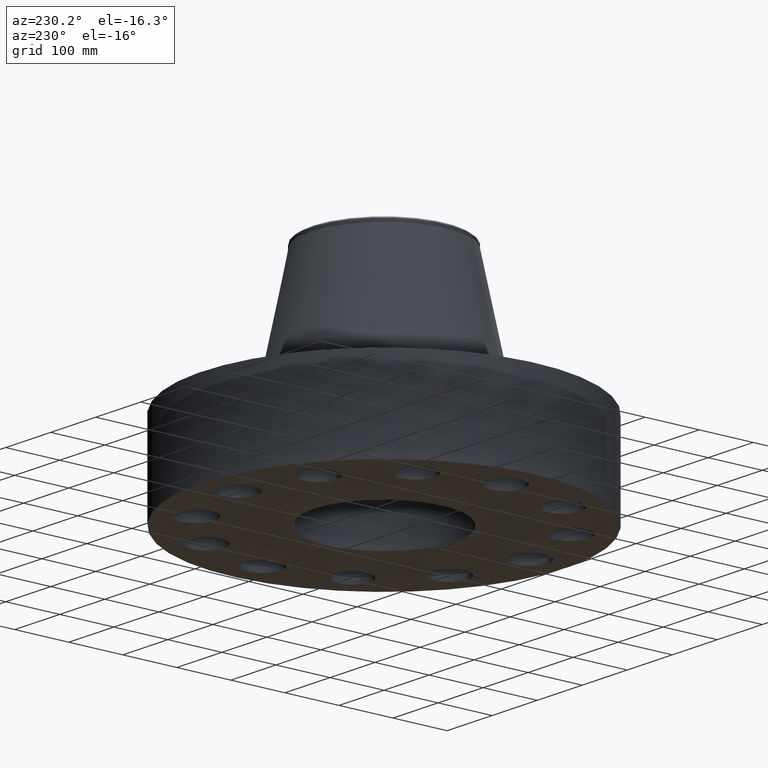
[diagram: clean part render]
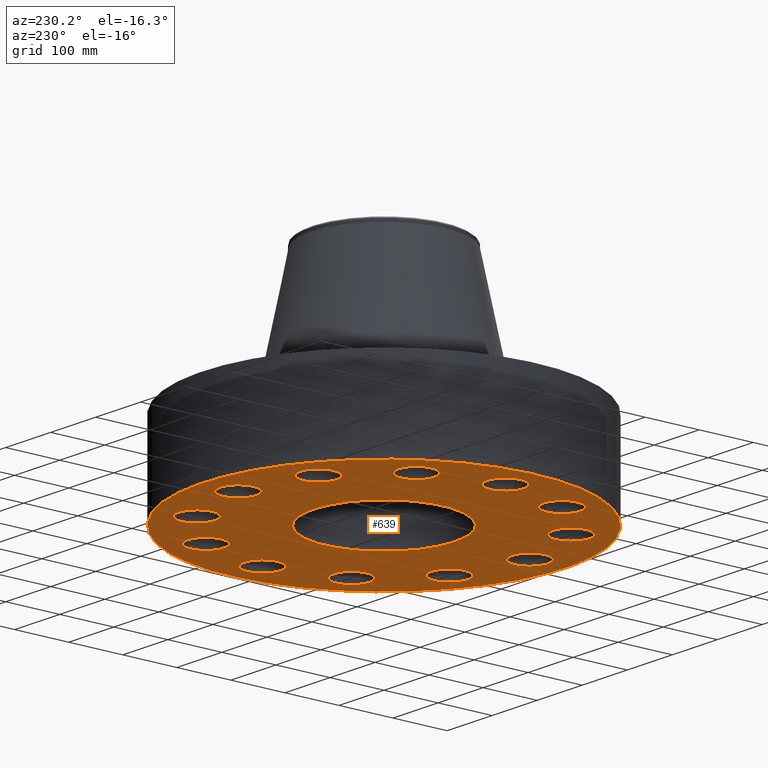
[diagram: same view with one face highlighted and labeled with its STEP entity id]
A machine part, auxiliary view. The second image highlights one B-rep face of the part: STEP entity #639.
In plain terms, the highlighted planar face has unit normal (0, 0, -1).
Its self-contained STEP definition (entity closure, byte-faithful):
#51=AXIS2_PLACEMENT_3D('Circle Axis2P3D',#49,#50,$) ;
#77=AXIS2_PLACEMENT_3D('Circle Axis2P3D',#75,#76,$) ;
#99=AXIS2_PLACEMENT_3D('Circle Axis2P3D',#97,#98,$) ;
#134=AXIS2_PLACEMENT_3D('Circle Axis2P3D',#132,#133,$) ;
#395=AXIS2_PLACEMENT_3D('Circle Axis2P3D',#393,#394,$) ;
#414=AXIS2_PLACEMENT_3D('Circle Axis2P3D',#412,#413,$) ;
#427=AXIS2_PLACEMENT_3D('Plane Axis2P3D',#424,#425,#426) ;
#443=AXIS2_PLACEMENT_3D('Circle Axis2P3D',#441,#442,$) ;
#452=AXIS2_PLACEMENT_3D('Circle Axis2P3D',#450,#451,$) ;
#461=AXIS2_PLACEMENT_3D('Circle Axis2P3D',#459,#460,$) ;
#470=AXIS2_PLACEMENT_3D('Circle Axis2P3D',#468,#469,$) ;
#479=AXIS2_PLACEMENT_3D('Circle Axis2P3D',#477,#478,$) ;
#488=AXIS2_PLACEMENT_3D('Circle Axis2P3D',#486,#487,$) ;
#497=AXIS2_PLACEMENT_3D('Circle Axis2P3D',#495,#496,$) ;
#506=AXIS2_PLACEMENT_3D('Circle Axis2P3D',#504,#505,$) ;
#515=AXIS2_PLACEMENT_3D('Circle Axis2P3D',#513,#514,$) ;
#524=AXIS2_PLACEMENT_3D('Circle Axis2P3D',#522,#523,$) ;
#533=AXIS2_PLACEMENT_3D('Circle Axis2P3D',#531,#532,$) ;
#542=AXIS2_PLACEMENT_3D('Circle Axis2P3D',#540,#541,$) ;
#551=AXIS2_PLACEMENT_3D('Circle Axis2P3D',#549,#550,$) ;
#560=AXIS2_PLACEMENT_3D('Circle Axis2P3D',#558,#559,$) ;
#569=AXIS2_PLACEMENT_3D('Circle Axis2P3D',#567,#568,$) ;
#578=AXIS2_PLACEMENT_3D('Circle Axis2P3D',#576,#577,$) ;
#587=AXIS2_PLACEMENT_3D('Circle Axis2P3D',#585,#586,$) ;
#596=AXIS2_PLACEMENT_3D('Circle Axis2P3D',#594,#595,$) ;
#605=AXIS2_PLACEMENT_3D('Circle Axis2P3D',#603,#604,$) ;
#614=AXIS2_PLACEMENT_3D('Circle Axis2P3D',#612,#613,$) ;
#623=AXIS2_PLACEMENT_3D('Circle Axis2P3D',#621,#622,$) ;
#632=AXIS2_PLACEMENT_3D('Circle Axis2P3D',#630,#631,$) ;
#44=CARTESIAN_POINT('Vertex',(9.47097893115,0.630444583267,0.)) ;
#49=CARTESIAN_POINT('Axis2P3D Location',(10.625,0.,0.)) ;
#53=CARTESIAN_POINT('Vertex',(11.7790210689,-0.630444583267,0.)) ;
#75=CARTESIAN_POINT('Axis2P3D Location',(10.625,0.,0.)) ;
#97=CARTESIAN_POINT('Axis2P3D Location',(0.,0.,1.1189649382E-015)) ;
#101=CARTESIAN_POINT('Vertex',(-6.35238838653,-11.6279689451,1.1189649382E-015)) ;
#103=CARTESIAN_POINT('Vertex',(6.35238838653,11.6279689451,1.1189649382E-015)) ;
#132=CARTESIAN_POINT('Axis2P3D Location',(0.,0.,1.1189649382E-015)) ;
#390=CARTESIAN_POINT('Vertex',(-2.45705588536,-4.49761062971,-1.56655091349E-014)) ;
#393=CARTESIAN_POINT('Axis2P3D Location',(0.,0.,-1.79034390113E-014)) ;
#397=CARTESIAN_POINT('Vertex',(2.45705588536,4.49761062971,-1.56655091349E-014)) ;
#412=CARTESIAN_POINT('Axis2P3D Location',(0.,0.,-1.79034390113E-014)) ;
#424=CARTESIAN_POINT('Axis2P3D Location',(0.,5.12500000002,0.)) ;
#441=CARTESIAN_POINT('Axis2P3D Location',(9.20151991525,-5.31250000002,0.)) ;
#445=CARTESIAN_POINT('Vertex',(8.51733064472,-4.18950844079,0.)) ;
#447=CARTESIAN_POINT('Vertex',(9.88570918577,-6.43549155925,0.)) ;
#450=CARTESIAN_POINT('Axis2P3D Location',(9.20151991525,-5.31250000002,0.)) ;
#459=CARTESIAN_POINT('Axis2P3D Location',(5.31250000002,-9.20151991525,0.)) ;
#463=CARTESIAN_POINT('Vertex',(5.28147049036,-7.88688606145,0.)) ;
#465=CARTESIAN_POINT('Vertex',(5.34352950968,-10.516153769,0.)) ;
#468=CARTESIAN_POINT('Axis2P3D Location',(5.31250000002,-9.20151991525,0.)) ;
#477=CARTESIAN_POINT('Axis2P3D Location',(-1.53857679003E-015,-10.625,0.)) ;
#481=CARTESIAN_POINT('Vertex',(0.630444583267,-9.47097893115,0.)) ;
#483=CARTESIAN_POINT('Vertex',(-0.630444583267,-11.7790210689,0.)) ;
#486=CARTESIAN_POINT('Axis2P3D Location',(-9.79094320929E-016,-10.625,0.)) ;
#495=CARTESIAN_POINT('Axis2P3D Location',(-5.31250000002,-9.20151991525,0.)) ;
#499=CARTESIAN_POINT('Vertex',(-4.18950844079,-8.51733064472,0.)) ;
#501=CARTESIAN_POINT('Vertex',(-6.43549155925,-9.88570918577,-6.71378962923E-015)) ;
#504=CARTESIAN_POINT('Axis2P3D Location',(-5.31250000002,-9.20151991525,0.)) ;
#513=CARTESIAN_POINT('Axis2P3D Location',(-9.20151991525,-5.31250000002,0.)) ;
#517=CARTESIAN_POINT('Vertex',(-7.88688606145,-5.28147049036,0.)) ;
#519=CARTESIAN_POINT('Vertex',(-10.516153769,-5.34352950968,0.)) ;
#522=CARTESIAN_POINT('Axis2P3D Location',(-9.20151991525,-5.31250000002,0.)) ;
#531=CARTESIAN_POINT('Axis2P3D Location',(-10.625,0.,0.)) ;
#535=CARTESIAN_POINT('Vertex',(-9.47097893115,-0.630444583267,0.)) ;
#537=CARTESIAN_POINT('Vertex',(-11.7790210689,0.630444583267,0.)) ;
#540=CARTESIAN_POINT('Axis2P3D Location',(-10.625,-1.1189649382E-015,0.)) ;
#549=CARTESIAN_POINT('Axis2P3D Location',(-9.20151991525,5.31250000002,0.)) ;
#553=CARTESIAN_POINT('Vertex',(-8.51733064472,4.18950844079,0.)) ;
#555=CARTESIAN_POINT('Vertex',(-9.88570918577,6.43549155925,0.)) ;
#558=CARTESIAN_POINT('Axis2P3D Location',(-9.20151991525,5.31250000002,0.)) ;
#567=CARTESIAN_POINT('Axis2P3D Location',(-5.31250000002,9.20151991525,0.)) ;
#571=CARTESIAN_POINT('Vertex',(-5.28147049036,7.88688606145,0.)) ;
#573=CARTESIAN_POINT('Vertex',(-5.34352950968,10.516153769,0.)) ;
#576=CARTESIAN_POINT('Axis2P3D Location',(-5.31250000002,9.20151991525,0.)) ;
#585=CARTESIAN_POINT('Axis2P3D Location',(-1.95818864186E-015,10.625,0.)) ;
#589=CARTESIAN_POINT('Vertex',(-0.630444583267,9.47097893115,0.)) ;
#591=CARTESIAN_POINT('Vertex',(0.630444583267,11.7790210689,0.)) ;
#594=CARTESIAN_POINT('Axis2P3D Location',(-2.09805925913E-015,10.625,0.)) ;
#603=CARTESIAN_POINT('Axis2P3D Location',(5.31250000002,9.20151991525,0.)) ;
#607=CARTESIAN_POINT('Vertex',(4.18950844079,8.51733064472,0.)) ;
#609=CARTESIAN_POINT('Vertex',(6.43549155925,9.88570918577,0.)) ;
#612=CARTESIAN_POINT('Axis2P3D Location',(5.31250000002,9.20151991525,0.)) ;
#621=CARTESIAN_POINT('Axis2P3D Location',(9.20151991525,5.31250000002,0.)) ;
#625=CARTESIAN_POINT('Vertex',(7.88688606145,5.28147049036,0.)) ;
#627=CARTESIAN_POINT('Vertex',(10.516153769,5.34352950968,0.)) ;
#630=CARTESIAN_POINT('Axis2P3D Location',(9.20151991525,5.31250000002,0.)) ;
#50=DIRECTION('Axis2P3D Direction',(0.,-0.,-0.0393700787402)) ;
#76=DIRECTION('Axis2P3D Direction',(0.,-0.,-0.0393700787402)) ;
#98=DIRECTION('Axis2P3D Direction',(0.,0.,-0.0393700787402)) ;
#133=DIRECTION('Axis2P3D Direction',(0.,0.,-0.0393700787402)) ;
#394=DIRECTION('Axis2P3D Direction',(0.,0.,-0.0393700787402)) ;
#413=DIRECTION('Axis2P3D Direction',(0.,0.,-0.0393700787402)) ;
#425=DIRECTION('Axis2P3D Direction',(0.,0.,-0.0393700787402)) ;
#426=DIRECTION('Axis2P3D XDirection',(0.0393700787402,0.,0.)) ;
#442=DIRECTION('Axis2P3D Direction',(0.,0.,-0.0393700787402)) ;
#451=DIRECTION('Axis2P3D Direction',(0.,0.,-0.0393700787402)) ;
#460=DIRECTION('Axis2P3D Direction',(0.,0.,-0.0393700787402)) ;
#469=DIRECTION('Axis2P3D Direction',(0.,0.,-0.0393700787402)) ;
#478=DIRECTION('Axis2P3D Direction',(0.,0.,-0.0393700787402)) ;
#487=DIRECTION('Axis2P3D Direction',(0.,0.,-0.0393700787402)) ;
#496=DIRECTION('Axis2P3D Direction',(0.,0.,-0.0393700787402)) ;
#505=DIRECTION('Axis2P3D Direction',(0.,0.,-0.0393700787402)) ;
#514=DIRECTION('Axis2P3D Direction',(0.,0.,-0.0393700787402)) ;
#523=DIRECTION('Axis2P3D Direction',(0.,0.,-0.0393700787402)) ;
#532=DIRECTION('Axis2P3D Direction',(0.,0.,-0.0393700787402)) ;
#541=DIRECTION('Axis2P3D Direction',(0.,0.,-0.0393700787402)) ;
#550=DIRECTION('Axis2P3D Direction',(0.,0.,-0.0393700787402)) ;
#559=DIRECTION('Axis2P3D Direction',(0.,0.,-0.0393700787402)) ;
#568=DIRECTION('Axis2P3D Direction',(0.,0.,-0.0393700787402)) ;
#577=DIRECTION('Axis2P3D Direction',(0.,0.,-0.0393700787402)) ;
#586=DIRECTION('Axis2P3D Direction',(0.,0.,-0.0393700787402)) ;
#595=DIRECTION('Axis2P3D Direction',(0.,0.,-0.0393700787402)) ;
#604=DIRECTION('Axis2P3D Direction',(0.,0.,-0.0393700787402)) ;
#613=DIRECTION('Axis2P3D Direction',(0.,0.,-0.0393700787402)) ;
#622=DIRECTION('Axis2P3D Direction',(0.,0.,-0.0393700787402)) ;
#631=DIRECTION('Axis2P3D Direction',(0.,0.,-0.0393700787402)) ;
#430=ORIENTED_EDGE('',*,*,#105,.T.) ;
#431=ORIENTED_EDGE('',*,*,#136,.T.) ;
#434=ORIENTED_EDGE('',*,*,#79,.F.) ;
#435=ORIENTED_EDGE('',*,*,#55,.F.) ;
#438=ORIENTED_EDGE('',*,*,#416,.F.) ;
#439=ORIENTED_EDGE('',*,*,#399,.F.) ;
#456=ORIENTED_EDGE('',*,*,#449,.F.) ;
#457=ORIENTED_EDGE('',*,*,#454,.F.) ;
#474=ORIENTED_EDGE('',*,*,#467,.F.) ;
#475=ORIENTED_EDGE('',*,*,#472,.F.) ;
#492=ORIENTED_EDGE('',*,*,#485,.F.) ;
#493=ORIENTED_EDGE('',*,*,#490,.F.) ;
#510=ORIENTED_EDGE('',*,*,#503,.F.) ;
#511=ORIENTED_EDGE('',*,*,#508,.F.) ;
#528=ORIENTED_EDGE('',*,*,#521,.F.) ;
#529=ORIENTED_EDGE('',*,*,#526,.F.) ;
#546=ORIENTED_EDGE('',*,*,#539,.F.) ;
#547=ORIENTED_EDGE('',*,*,#544,.F.) ;
#564=ORIENTED_EDGE('',*,*,#557,.F.) ;
#565=ORIENTED_EDGE('',*,*,#562,.F.) ;
#582=ORIENTED_EDGE('',*,*,#575,.F.) ;
#583=ORIENTED_EDGE('',*,*,#580,.F.) ;
#600=ORIENTED_EDGE('',*,*,#593,.F.) ;
#601=ORIENTED_EDGE('',*,*,#598,.F.) ;
#618=ORIENTED_EDGE('',*,*,#611,.F.) ;
#619=ORIENTED_EDGE('',*,*,#616,.F.) ;
#636=ORIENTED_EDGE('',*,*,#629,.F.) ;
#637=ORIENTED_EDGE('',*,*,#634,.F.) ;
#436=FACE_BOUND('',#433,.T.) ;
#440=FACE_BOUND('',#437,.T.) ;
#458=FACE_BOUND('',#455,.T.) ;
#476=FACE_BOUND('',#473,.T.) ;
#494=FACE_BOUND('',#491,.T.) ;
#512=FACE_BOUND('',#509,.T.) ;
#530=FACE_BOUND('',#527,.T.) ;
#548=FACE_BOUND('',#545,.T.) ;
#566=FACE_BOUND('',#563,.T.) ;
#584=FACE_BOUND('',#581,.T.) ;
#602=FACE_BOUND('',#599,.T.) ;
#620=FACE_BOUND('',#617,.T.) ;
#638=FACE_BOUND('',#635,.T.) ;
#639=ADVANCED_FACE('PartBody',(#432,#436,#440,#458,#476,#494,#512,#530,#548,#566,#584,#602,#620,#638),#428,.T.) ;
#52=CIRCLE('generated circle',#51,1.31500000001) ;
#78=CIRCLE('generated circle',#77,1.31500000001) ;
#100=CIRCLE('generated circle',#99,13.2500000001) ;
#135=CIRCLE('generated circle',#134,13.2500000001) ;
#396=CIRCLE('generated circle',#395,5.12500000002) ;
#415=CIRCLE('generated circle',#414,5.12500000002) ;
#444=CIRCLE('generated circle',#443,1.31500000001) ;
#453=CIRCLE('generated circle',#452,1.31500000001) ;
#462=CIRCLE('generated circle',#461,1.31500000001) ;
#471=CIRCLE('generated circle',#470,1.31500000001) ;
#480=CIRCLE('generated circle',#479,1.31500000001) ;
#489=CIRCLE('generated circle',#488,1.31500000001) ;
#498=CIRCLE('generated circle',#497,1.31500000001) ;
#507=CIRCLE('generated circle',#506,1.31500000001) ;
#516=CIRCLE('generated circle',#515,1.31500000001) ;
#525=CIRCLE('generated circle',#524,1.31500000001) ;
#534=CIRCLE('generated circle',#533,1.31500000001) ;
#543=CIRCLE('generated circle',#542,1.31500000001) ;
#552=CIRCLE('generated circle',#551,1.31500000001) ;
#561=CIRCLE('generated circle',#560,1.31500000001) ;
#570=CIRCLE('generated circle',#569,1.31500000001) ;
#579=CIRCLE('generated circle',#578,1.31500000001) ;
#588=CIRCLE('generated circle',#587,1.31500000001) ;
#597=CIRCLE('generated circle',#596,1.31500000001) ;
#606=CIRCLE('generated circle',#605,1.31500000001) ;
#615=CIRCLE('generated circle',#614,1.31500000001) ;
#624=CIRCLE('generated circle',#623,1.31500000001) ;
#633=CIRCLE('generated circle',#632,1.31500000001) ;
#55=EDGE_CURVE('',#45,#54,#52,.T.) ;
#79=EDGE_CURVE('',#54,#45,#78,.T.) ;
#105=EDGE_CURVE('',#102,#104,#100,.T.) ;
#136=EDGE_CURVE('',#104,#102,#135,.T.) ;
#399=EDGE_CURVE('',#391,#398,#396,.T.) ;
#416=EDGE_CURVE('',#398,#391,#415,.T.) ;
#449=EDGE_CURVE('',#446,#448,#444,.T.) ;
#454=EDGE_CURVE('',#448,#446,#453,.T.) ;
#467=EDGE_CURVE('',#464,#466,#462,.T.) ;
#472=EDGE_CURVE('',#466,#464,#471,.T.) ;
#485=EDGE_CURVE('',#482,#484,#480,.T.) ;
#490=EDGE_CURVE('',#484,#482,#489,.T.) ;
#503=EDGE_CURVE('',#500,#502,#498,.T.) ;
#508=EDGE_CURVE('',#502,#500,#507,.T.) ;
#521=EDGE_CURVE('',#518,#520,#516,.T.) ;
#526=EDGE_CURVE('',#520,#518,#525,.T.) ;
#539=EDGE_CURVE('',#536,#538,#534,.T.) ;
#544=EDGE_CURVE('',#538,#536,#543,.T.) ;
#557=EDGE_CURVE('',#554,#556,#552,.T.) ;
#562=EDGE_CURVE('',#556,#554,#561,.T.) ;
#575=EDGE_CURVE('',#572,#574,#570,.T.) ;
#580=EDGE_CURVE('',#574,#572,#579,.T.) ;
#593=EDGE_CURVE('',#590,#592,#588,.T.) ;
#598=EDGE_CURVE('',#592,#590,#597,.T.) ;
#611=EDGE_CURVE('',#608,#610,#606,.T.) ;
#616=EDGE_CURVE('',#610,#608,#615,.T.) ;
#629=EDGE_CURVE('',#626,#628,#624,.T.) ;
#634=EDGE_CURVE('',#628,#626,#633,.T.) ;
#429=EDGE_LOOP('',(#430,#431)) ;
#433=EDGE_LOOP('',(#434,#435)) ;
#437=EDGE_LOOP('',(#438,#439)) ;
#455=EDGE_LOOP('',(#456,#457)) ;
#473=EDGE_LOOP('',(#474,#475)) ;
#491=EDGE_LOOP('',(#492,#493)) ;
#509=EDGE_LOOP('',(#510,#511)) ;
#527=EDGE_LOOP('',(#528,#529)) ;
#545=EDGE_LOOP('',(#546,#547)) ;
#563=EDGE_LOOP('',(#564,#565)) ;
#581=EDGE_LOOP('',(#582,#583)) ;
#599=EDGE_LOOP('',(#600,#601)) ;
#617=EDGE_LOOP('',(#618,#619)) ;
#635=EDGE_LOOP('',(#636,#637)) ;
#432=FACE_OUTER_BOUND('',#429,.T.) ;
#428=PLANE('',#427) ;
#45=VERTEX_POINT('',#44) ;
#54=VERTEX_POINT('',#53) ;
#102=VERTEX_POINT('',#101) ;
#104=VERTEX_POINT('',#103) ;
#391=VERTEX_POINT('',#390) ;
#398=VERTEX_POINT('',#397) ;
#446=VERTEX_POINT('',#445) ;
#448=VERTEX_POINT('',#447) ;
#464=VERTEX_POINT('',#463) ;
#466=VERTEX_POINT('',#465) ;
#482=VERTEX_POINT('',#481) ;
#484=VERTEX_POINT('',#483) ;
#500=VERTEX_POINT('',#499) ;
#502=VERTEX_POINT('',#501) ;
#518=VERTEX_POINT('',#517) ;
#520=VERTEX_POINT('',#519) ;
#536=VERTEX_POINT('',#535) ;
#538=VERTEX_POINT('',#537) ;
#554=VERTEX_POINT('',#553) ;
#556=VERTEX_POINT('',#555) ;
#572=VERTEX_POINT('',#571) ;
#574=VERTEX_POINT('',#573) ;
#590=VERTEX_POINT('',#589) ;
#592=VERTEX_POINT('',#591) ;
#608=VERTEX_POINT('',#607) ;
#610=VERTEX_POINT('',#609) ;
#626=VERTEX_POINT('',#625) ;
#628=VERTEX_POINT('',#627) ;